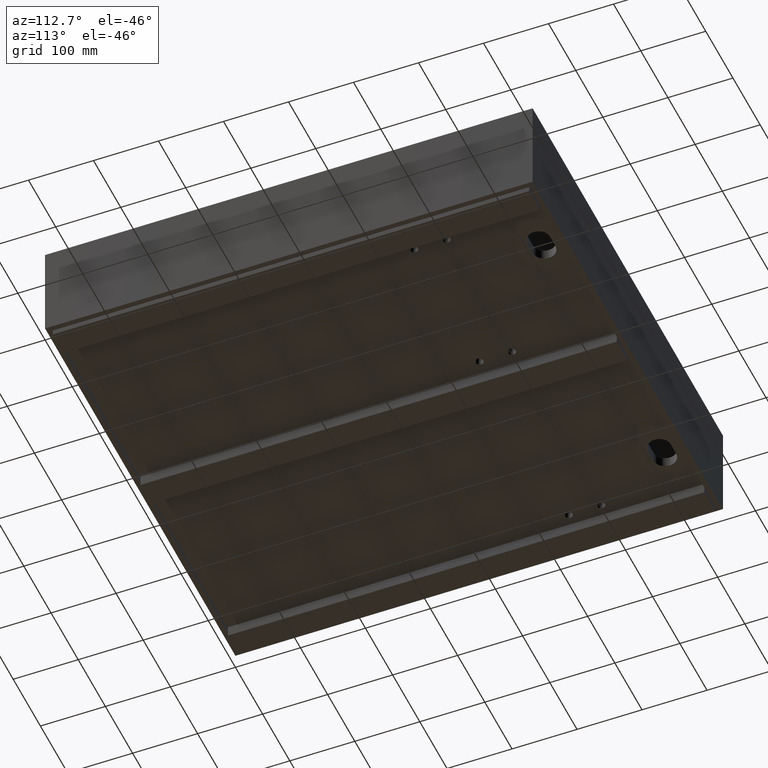
[diagram: clean part render]
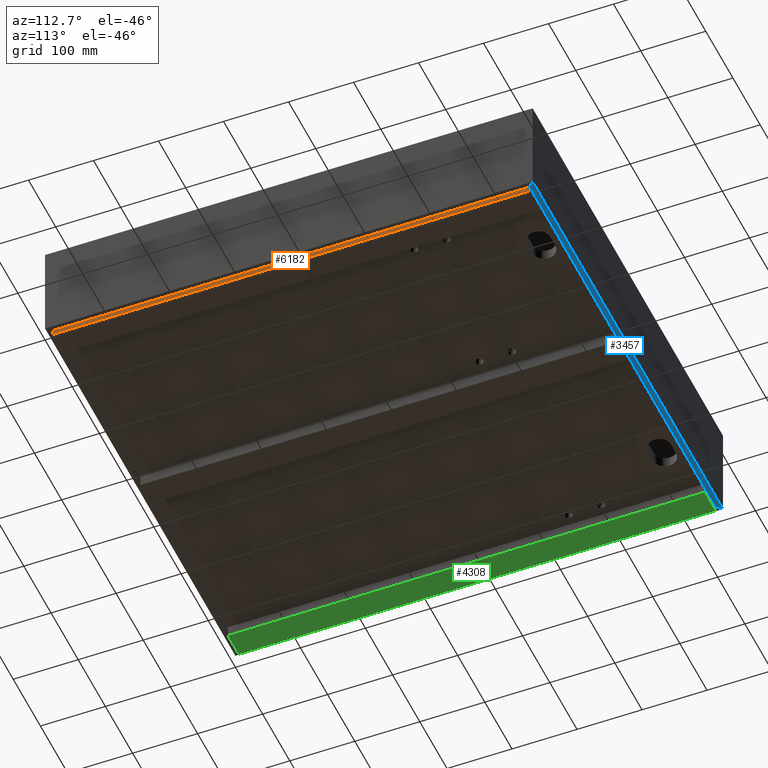
[diagram: same view with three faces highlighted in distinct colors, each labeled with its STEP entity id]
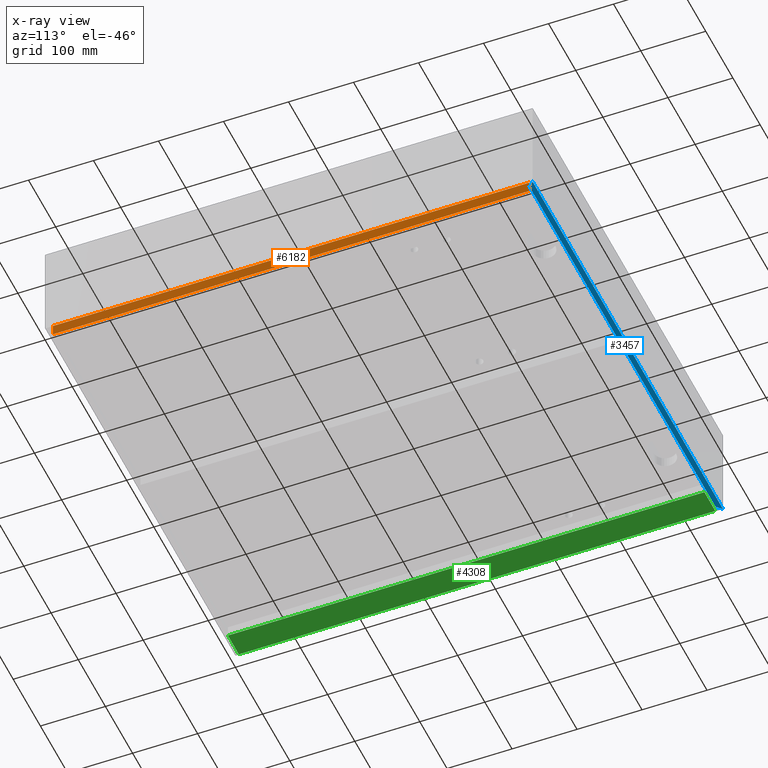
[diagram: x-ray of the same camera — body ghosted, the three highlighted faces saturated]
A machine part, auxiliary view with three faces highlighted in distinct colors.
The next image is the same camera in x-ray (body ghosted, the three faces saturated) — at least one of them is partly hidden behind the body in this view.
Their STEP definitions:

[orange] entity #6182 — the highlighted planar face has unit normal (-1, 0, 0).
#337 = DIRECTION ( 'NONE',  ( 1.423362852083534886E-16, -1.540743955509788682E-33, 1.000000000000000000 ) ) ;
#412 = VERTEX_POINT ( 'NONE', #8900 ) ;
#567 = ORIENTED_EDGE ( 'NONE', *, *, #3048, .F. ) ;
#679 = EDGE_CURVE ( 'NONE', #8844, #8452, #4016, .T. ) ;
#818 = DIRECTION ( 'NONE',  ( -1.514629162466674743E-16, -1.000000000000000000, 0.0000000000000000000 ) ) ;
#1262 = AXIS2_PLACEMENT_3D ( 'NONE', #11322, #3217, #6841 ) ;
#1711 = ORIENTED_EDGE ( 'NONE', *, *, #679, .F. ) ;
#1763 = DIRECTION ( 'NONE',  ( -1.514629162466674743E-16, -1.000000000000000000, 0.0000000000000000000 ) ) ;
#1923 = CARTESIAN_POINT ( 'NONE',  ( 691.9999999999998863, 8.499999999999952038, -158.0000000000003695 ) ) ;
#3048 = EDGE_CURVE ( 'NONE', #6551, #8844, #5331, .T. ) ;
#3084 = CARTESIAN_POINT ( 'NONE',  ( 692.0000000000000000, 741.4999000000001388, -158.0000000000003695 ) ) ;
#3217 = DIRECTION ( 'NONE',  ( -1.000000000000000000, 1.514629162466674743E-16, 1.423362852083534886E-16 ) ) ;
#3949 = FACE_OUTER_BOUND ( 'NONE', #10897, .T. ) ;
#4016 = LINE ( 'NONE', #7637, #9488 ) ;
#4671 = VECTOR ( 'NONE', #1763, 1000.000000000000000 ) ;
#4846 = LINE ( 'NONE', #8462, #6025 ) ;
#5330 = CARTESIAN_POINT ( 'NONE',  ( 691.9999999999998863, 8.499999999999952038, -141.0000000000003411 ) ) ;
#5331 = LINE ( 'NONE', #8943, #8789 ) ;
#5668 = ORIENTED_EDGE ( 'NONE', *, *, #7439, .T. ) ;
#6025 = VECTOR ( 'NONE', #337, 1000.000000000000000 ) ;
#6182 = ADVANCED_FACE ( 'NONE', ( #3949 ), #7570, .F. ) ;
#6275 = LINE ( 'NONE', #9874, #4671 ) ;
#6551 = VERTEX_POINT ( 'NONE', #3084 ) ;
#6841 = DIRECTION ( 'NONE',  ( -1.514629162466674743E-16, -1.000000000000000000, 0.0000000000000000000 ) ) ;
#7239 = EDGE_CURVE ( 'NONE', #412, #8452, #6275, .T. ) ;
#7439 = EDGE_CURVE ( 'NONE', #6551, #412, #4846, .T. ) ;
#7570 = PLANE ( 'NONE',  #1262 ) ;
#7637 = CARTESIAN_POINT ( 'NONE',  ( 691.9999999999998863, 8.499999999999952038, -158.0000000000003695 ) ) ;
#8452 = VERTEX_POINT ( 'NONE', #5330 ) ;
#8462 = CARTESIAN_POINT ( 'NONE',  ( 692.0000000000000000, 741.4999000000001388, -158.0000000000003695 ) ) ;
#8789 = VECTOR ( 'NONE', #818, 1000.000000000000000 ) ;
#8844 = VERTEX_POINT ( 'NONE', #1923 ) ;
#8900 = CARTESIAN_POINT ( 'NONE',  ( 692.0000000000000000, 741.4999000000001388, -141.0000000000003411 ) ) ;
#8943 = CARTESIAN_POINT ( 'NONE',  ( 692.0000000000000000, 741.4999000000001388, -158.0000000000003695 ) ) ;
#9334 = ORIENTED_EDGE ( 'NONE', *, *, #7239, .T. ) ;
#9488 = VECTOR ( 'NONE', #11231, 1000.000000000000000 ) ;
#9874 = CARTESIAN_POINT ( 'NONE',  ( 692.0000000000000000, 741.4999000000001388, -141.0000000000003411 ) ) ;
#10897 = EDGE_LOOP ( 'NONE', ( #9334, #1711, #567, #5668 ) ) ;
#11231 = DIRECTION ( 'NONE',  ( 1.423362852083534886E-16, -1.540743955509788682E-33, 1.000000000000000000 ) ) ;
#11322 = CARTESIAN_POINT ( 'NONE',  ( 692.0000000000000000, 741.4999000000001388, -158.0000000000003695 ) ) ;

[blue] entity #3457 — the highlighted planar face has unit normal (0, -0, -1).
#221 = EDGE_CURVE ( 'NONE', #10548, #9517, #4879, .T. ) ;
#304 = PLANE ( 'NONE',  #7846 ) ;
#370 = DIRECTION ( 'NONE',  ( -0.7071067811865474617, -0.7071067811865474617, -4.336808689942017255E-19 ) ) ;
#768 = LINE ( 'NONE', #4377, #9928 ) ;
#1246 = DIRECTION ( 'NONE',  ( -1.000000000000000000, 9.629649721936179265E-35, -5.785312997006970199E-34 ) ) ;
#1341 = VECTOR ( 'NONE', #370, 1000.000000000000114 ) ;
#1395 = CARTESIAN_POINT ( 'NONE',  ( 0.0000000000000000000, 749.9999000000000251, -150.0000000000000284 ) ) ;
#1413 = VECTOR ( 'NONE', #2772, 1000.000000000000000 ) ;
#1585 = EDGE_CURVE ( 'NONE', #9517, #1799, #5761, .T. ) ;
#1799 = VERTEX_POINT ( 'NONE', #5273 ) ;
#2685 = ORIENTED_EDGE ( 'NONE', *, *, #221, .T. ) ;
#2772 = DIRECTION ( 'NONE',  ( -1.000000000000000000, 9.629649721936179265E-35, -5.785312997006970199E-34 ) ) ;
#2910 = ORIENTED_EDGE ( 'NONE', *, *, #3754, .F. ) ;
#3262 = ORIENTED_EDGE ( 'NONE', *, *, #1585, .T. ) ;
#3457 = ADVANCED_FACE ( 'NONE', ( #8426 ), #304, .T. ) ;
#3754 = EDGE_CURVE ( 'NONE', #10548, #4371, #7283, .T. ) ;
#3914 = CARTESIAN_POINT ( 'NONE',  ( 0.0000000000000000000, 741.9999000000000251, -150.0000000000000000 ) ) ;
#4371 = VERTEX_POINT ( 'NONE', #1395 ) ;
#4377 = CARTESIAN_POINT ( 'NONE',  ( 4.000000000000003553, 745.9999000000000251, -150.0000000000000000 ) ) ;
#4879 = LINE ( 'NONE', #8493, #1341 ) ;
#5273 = CARTESIAN_POINT ( 'NONE',  ( 8.000000000000007105, 741.9999000000000251, -150.0000000000000000 ) ) ;
#5761 = LINE ( 'NONE', #9361, #7810 ) ;
#6393 = CARTESIAN_POINT ( 'NONE',  ( 700.0000000000000000, 749.9999000000000251, -150.0000000000000284 ) ) ;
#6954 = CARTESIAN_POINT ( 'NONE',  ( 692.0000000000000000, 741.9999000000000251, -150.0000000000000000 ) ) ;
#7283 = LINE ( 'NONE', #10885, #1413 ) ;
#7538 = DIRECTION ( 'NONE',  ( 5.785312997006970199E-34, -1.114210753858838690E-67, -1.000000000000000000 ) ) ;
#7810 = VECTOR ( 'NONE', #1246, 1000.000000000000000 ) ;
#7846 = AXIS2_PLACEMENT_3D ( 'NONE', #3914, #7538, #11134 ) ;
#8006 = DIRECTION ( 'NONE',  ( -0.7071067811865474617, 0.7071067811865474617, 4.336808689942017255E-19 ) ) ;
#8426 = FACE_OUTER_BOUND ( 'NONE', #9220, .T. ) ;
#8493 = CARTESIAN_POINT ( 'NONE',  ( 346.0000000000000000, 395.9999000000000251, -150.0000000000000284 ) ) ;
#9220 = EDGE_LOOP ( 'NONE', ( #2910, #2685, #3262, #9304 ) ) ;
#9304 = ORIENTED_EDGE ( 'NONE', *, *, #11219, .T. ) ;
#9361 = CARTESIAN_POINT ( 'NONE',  ( 0.0000000000000000000, 741.9999000000000251, -150.0000000000000000 ) ) ;
#9517 = VERTEX_POINT ( 'NONE', #6954 ) ;
#9928 = VECTOR ( 'NONE', #8006, 1000.000000000000114 ) ;
#10548 = VERTEX_POINT ( 'NONE', #6393 ) ;
#10885 = CARTESIAN_POINT ( 'NONE',  ( 0.0000000000000000000, 749.9999000000000251, -150.0000000000000284 ) ) ;
#11134 = DIRECTION ( 'NONE',  ( -1.000000000000000000, 9.629649721936179265E-35, -5.785312997006970199E-34 ) ) ;
#11219 = EDGE_CURVE ( 'NONE', #1799, #4371, #768, .T. ) ;

[green] entity #4308 — the highlighted planar face has unit normal (0, 0, 1).
#146 = VERTEX_POINT ( 'NONE', #1960 ) ;
#259 = ORIENTED_EDGE ( 'NONE', *, *, #6973, .T. ) ;
#333 = PLANE ( 'NONE',  #9934 ) ;
#354 = CARTESIAN_POINT ( 'NONE',  ( 47.99999999999994316, 8.500000000000007105, -158.0000000000002558 ) ) ;
#614 = CARTESIAN_POINT ( 'NONE',  ( 7.999999999999965361, 741.4999000000002525, -158.0000000000002558 ) ) ;
#1244 = LINE ( 'NONE', #4860, #3919 ) ;
#1607 = VERTEX_POINT ( 'NONE', #6697 ) ;
#1912 = ORIENTED_EDGE ( 'NONE', *, *, #3194, .T. ) ;
#1960 = CARTESIAN_POINT ( 'NONE',  ( 7.999999999999910294, 8.499999999999952038, -158.0000000000002558 ) ) ;
#1966 = VECTOR ( 'NONE', #6572, 1000.000000000000000 ) ;
#2071 = VECTOR ( 'NONE', #4223, 1000.000000000000000 ) ;
#2365 = CARTESIAN_POINT ( 'NONE',  ( 48.00000000000000000, 741.4999000000002525, -158.0000000000002558 ) ) ;
#2942 = CARTESIAN_POINT ( 'NONE',  ( 7.999999999999910294, 8.499999999999952038, -158.0000000000002558 ) ) ;
#3194 = EDGE_CURVE ( 'NONE', #8199, #146, #11049, .T. ) ;
#3692 = VERTEX_POINT ( 'NONE', #4431 ) ;
#3919 = VECTOR ( 'NONE', #8474, 1000.000000000000000 ) ;
#3947 = CARTESIAN_POINT ( 'NONE',  ( -3.469446951953614189E-15, 0.0000000000000000000, -158.0000000000002558 ) ) ;
#4097 = EDGE_LOOP ( 'NONE', ( #8932, #259, #11394, #1912 ) ) ;
#4223 = DIRECTION ( 'NONE',  ( 7.573145812333372482E-17, 1.000000000000000000, 3.851859888774471706E-34 ) ) ;
#4283 = VECTOR ( 'NONE', #6003, 1000.000000000000000 ) ;
#4308 = ADVANCED_FACE ( 'NONE', ( #8456 ), #333, .F. ) ;
#4431 = CARTESIAN_POINT ( 'NONE',  ( 48.00000000000000000, 741.4999000000002525, -158.0000000000002558 ) ) ;
#4860 = CARTESIAN_POINT ( 'NONE',  ( 7.999999999999965361, 741.4999000000002525, -158.0000000000002558 ) ) ;
#6003 = DIRECTION ( 'NONE',  ( -7.573145812333372482E-17, -1.000000000000000000, -3.851859888774471706E-34 ) ) ;
#6572 = DIRECTION ( 'NONE',  ( -1.000000000000000000, -1.084202172485503448E-15, 0.0000000000000000000 ) ) ;
#6660 = EDGE_CURVE ( 'NONE', #3692, #8199, #10479, .T. ) ;
#6697 = CARTESIAN_POINT ( 'NONE',  ( 7.999999999999965361, 741.4999000000002525, -158.0000000000002558 ) ) ;
#6973 = EDGE_CURVE ( 'NONE', #1607, #3692, #1244, .T. ) ;
#7568 = DIRECTION ( 'NONE',  ( 0.0000000000000000000, 0.0000000000000000000, 1.000000000000000000 ) ) ;
#8199 = VERTEX_POINT ( 'NONE', #354 ) ;
#8456 = FACE_OUTER_BOUND ( 'NONE', #4097, .T. ) ;
#8474 = DIRECTION ( 'NONE',  ( 1.000000000000000000, -1.742115888741809031E-34, 0.0000000000000000000 ) ) ;
#8746 = LINE ( 'NONE', #614, #2071 ) ;
#8932 = ORIENTED_EDGE ( 'NONE', *, *, #9077, .T. ) ;
#9077 = EDGE_CURVE ( 'NONE', #146, #1607, #8746, .T. ) ;
#9934 = AXIS2_PLACEMENT_3D ( 'NONE', #3947, #7568, #11162 ) ;
#10479 = LINE ( 'NONE', #2365, #4283 ) ;
#11049 = LINE ( 'NONE', #2942, #1966 ) ;
#11162 = DIRECTION ( 'NONE',  ( 1.000000000000000000, -1.742115888741809031E-34, 0.0000000000000000000 ) ) ;
#11394 = ORIENTED_EDGE ( 'NONE', *, *, #6660, .T. ) ;